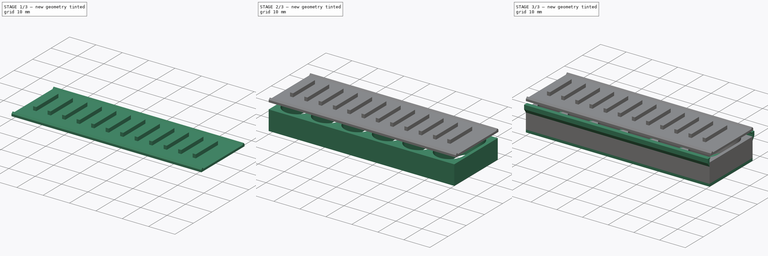
[diagram: build sequence overview — one tinted view per stage of 3, left to right]
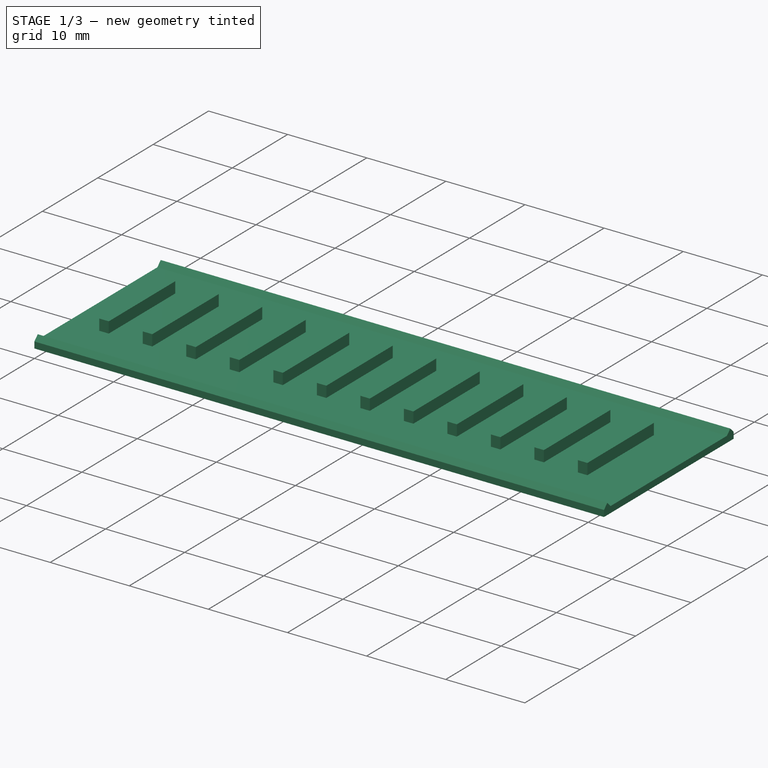
[diagram: stage 1 of 3 — iso view after this stage's code; geometry added in this stage tinted green]
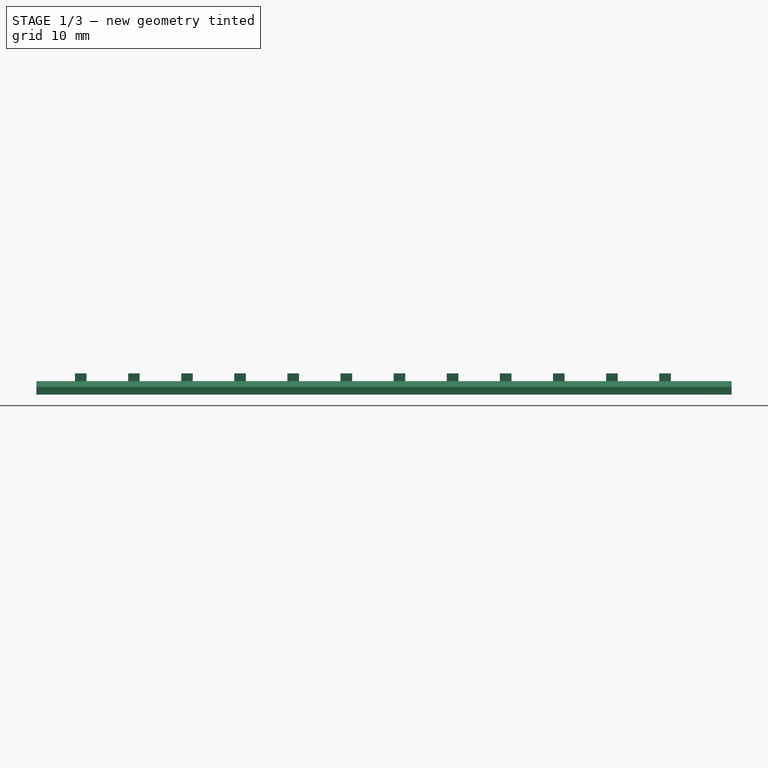
[diagram: stage 1 of 3 — front view after this stage's code; geometry added in this stage tinted green]
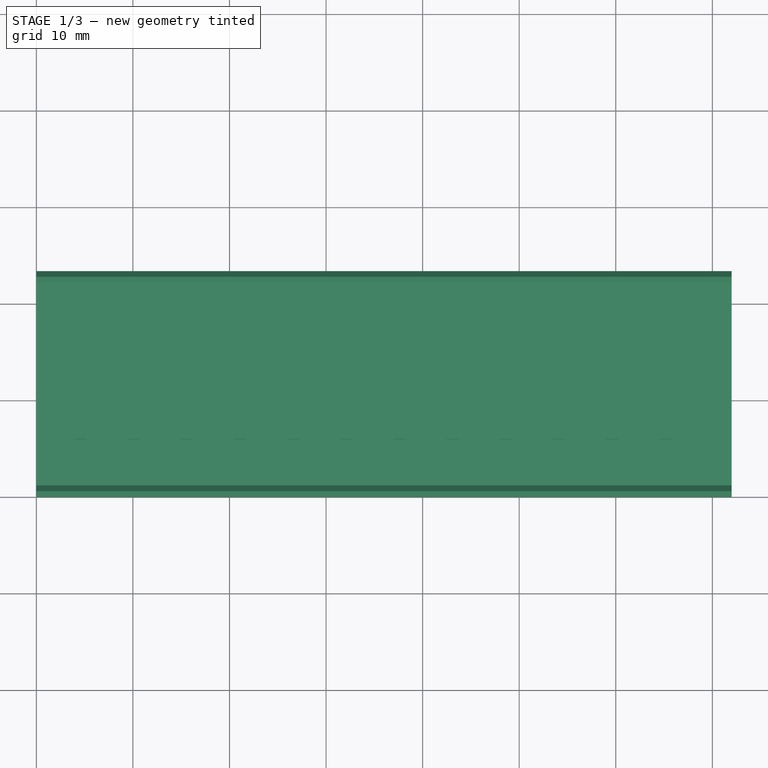
[diagram: stage 1 of 3 — top view after this stage's code; geometry added in this stage tinted green]
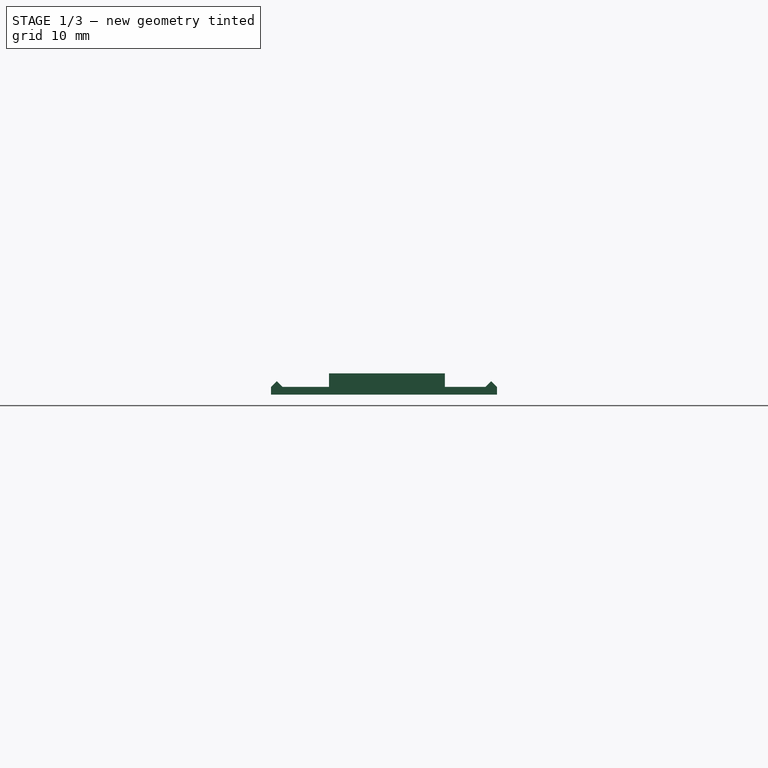
[diagram: stage 1 of 3 — right view after this stage's code; geometry added in this stage tinted green]
FCSTD DOCUMENT  (FreeCAD 0.21Rpre_29277.fc34 (Git))
Label: sotabletta-tarto
License: All rights reserved
LicenseURL: http://en.wikipedia.org/wiki/All_rights_reserved
objects: Sketcher::SketchObject×5, PartDesign::Pad×5, PartDesign::Body×2
note: 17 computed .brp shape members not serialized (recipe doc carries the construction recipe); baked Part::Feature solids carry a one-line shape summary decoded from their .brp

FEATURE [PartDesign::Body] Body  label="tarto"
  Group = -> [Sketch,Pad,Sketch001,Pad001,Sketch002,Pad002]
  Origin = -> Origin
  Tip = -> Pad002
FEATURE [Sketcher::SketchObject] Sketch003
  FullyConstrained = true
  MapMode = 5
  Placement = pos=(0,0,0) rot=(0.57735,0.57735,0.57735;2.0944rad)
  Support = -> [YZ_Plane001]
  sketch-geometry (8):
    g0: LineSegment StartX=0 StartY=10 StartZ=0 EndX=23.4 EndY=10 EndZ=0
    g1: LineSegment StartX=23.4 StartY=10 StartZ=0 EndX=23.4 EndY=10.8 EndZ=0
    g2: LineSegment StartX=23.4 StartY=10.8 StartZ=0 EndX=22.8 EndY=11.4 EndZ=0
    g3: LineSegment StartX=22.8 StartY=11.4 StartZ=0 EndX=22.2 EndY=10.8 EndZ=0
    g4: LineSegment StartX=22.2 StartY=10.8 StartZ=0 EndX=1.2 EndY=10.8 EndZ=0
    g5: LineSegment StartX=1.2 StartY=10.8 StartZ=0 EndX=0.6 EndY=11.4 EndZ=0
    g6: LineSegment StartX=0.6 StartY=11.4 StartZ=0 EndX=0 EndY=10.8 EndZ=0
    g7: LineSegment StartX=0 StartY=10.8 StartZ=0 EndX=0 EndY=10 EndZ=0
  constraints (24):
    c: PointOnObject(g0,g-2)
    c: Horizontal(g0)
    c: Coincident(g0,g1)
    c: Vertical(g1)
    c: Coincident(g1,g2)
    c: Coincident(g2,g3)
    c: Coincident(g3,g4)
    c: Horizontal(g4)
    c: Coincident(g4,g5)
    c: Coincident(g5,g6)
    c: PointOnObject(g6,g-2)
    c: Coincident(g6,g7)
    c: Coincident(g7,g0)
    c: DistanceY(g0) = 10
    c: DistanceY(g2,g2) = 0.6
    c: DistanceX(g0,g0) = 23.4
    c: DistanceY(g7,g7) = 0.8
    c: DistanceY(g6,g6) = 0.6
    c: DistanceY(g5,g5) = 0.6
    c: DistanceY(g3,g3) = 0.6
    c: DistanceX(g2,g2) = 0.6
    c: DistanceX(g3,g3) = 0.6
    c: DistanceX(g5,g5) = 0.6
    c: DistanceX(g6,g6) = 0.6
FEATURE [PartDesign::Pad] Pad003  label="fedlap"
  Direction = (1,-2e-16,3e-16)
  Length = 72
  Length2 = 10
  Placement = pos=(0,0,0) rot=(0.57735,0.57735,0.57735;2.0944rad)
  Profile = -> Sketch003
  ReferenceAxis = -> Sketch003 [N_Axis]
  Type = 0
FEATURE [Sketcher::SketchObject] Sketch004
  AttachmentOffset = pos=(0,0,10.8) rot=(0,0,1;0rad)
  FullyConstrained = true
  MapMode = 5
  Placement = pos=(0,0,10.8) rot=(0,0,1;0rad)
  Support = -> [XY_Plane001]
  sketch-geometry (59):
    g0: LineSegment StartX=4 StartY=18 StartZ=0 EndX=5.2 EndY=18 EndZ=0
    g1: LineSegment StartX=5.2 StartY=18 StartZ=0 EndX=5.2 EndY=6 EndZ=0
    g2: LineSegment StartX=5.2 StartY=6 StartZ=0 EndX=4 EndY=6 EndZ=0
    g3: LineSegment StartX=4 StartY=6 StartZ=0 EndX=4 EndY=18 EndZ=0
    g4: LineSegment StartX=9.5 StartY=18 StartZ=0 EndX=10.7 EndY=18 EndZ=0
    g5: LineSegment StartX=10.7 StartY=18 StartZ=0 EndX=10.7 EndY=6 EndZ=0
    g6: LineSegment StartX=10.7 StartY=6 StartZ=0 EndX=9.5 EndY=6 EndZ=0
    g7: LineSegment StartX=9.5 StartY=6 StartZ=0 EndX=9.5 EndY=18 EndZ=0
    g8: LineSegment StartX=4 StartY=18 StartZ=0 EndX=9.5 EndY=18 EndZ=0
    g9: LineSegment StartX=15 StartY=18 StartZ=0 EndX=16.2 EndY=18 EndZ=0
    g10: LineSegment StartX=16.2 StartY=18 StartZ=0 EndX=16.2 EndY=6 EndZ=0
    g11: LineSegment StartX=16.2 StartY=6 StartZ=0 EndX=15 EndY=6 EndZ=0
    g12: LineSegment StartX=15 StartY=6 StartZ=0 EndX=15 EndY=18 EndZ=0
    g13: LineSegment StartX=9.5 StartY=18 StartZ=0 EndX=15 EndY=18 EndZ=0
    g14: LineSegment StartX=20.5 StartY=18 StartZ=0 EndX=21.7 EndY=18 EndZ=0
    g15: LineSegment StartX=21.7 StartY=18 StartZ=0 EndX=21.7 EndY=6 EndZ=0
    g16: LineSegment StartX=21.7 StartY=6 StartZ=0 EndX=20.5 EndY=6 EndZ=0
    g17: LineSegment StartX=20.5 StartY=6 StartZ=0 EndX=20.5 EndY=18 EndZ=0
    g18: LineSegment StartX=15 StartY=18 StartZ=0 EndX=20.5 EndY=18 EndZ=0
    g19: LineSegment StartX=26 StartY=18 StartZ=0 EndX=27.2 EndY=18 EndZ=0
    g20: LineSegment StartX=27.2 StartY=18 StartZ=0 EndX=27.2 EndY=6 EndZ=0
    g21: LineSegment StartX=27.2 StartY=6 StartZ=0 EndX=26 EndY=6 EndZ=0
    g22: LineSegment StartX=26 StartY=6 StartZ=0 EndX=26 EndY=18 EndZ=0
    g23: LineSegment StartX=20.5 StartY=18 StartZ=0 EndX=26 EndY=18 EndZ=0
    g24: LineSegment StartX=31.5 StartY=18 StartZ=0 EndX=32.7 EndY=18 EndZ=0
    g25: LineSegment StartX=32.7 StartY=18 StartZ=0 EndX=32.7 EndY=6 EndZ=0
    g26: LineSegment StartX=32.7 StartY=6 StartZ=0 EndX=31.5 EndY=6 EndZ=0
    g27: LineSegment StartX=31.5 StartY=6 StartZ=0 EndX=31.5 EndY=18 EndZ=0
    g28: LineSegment StartX=26 StartY=18 StartZ=0 EndX=31.5 EndY=18 EndZ=0
    g29: LineSegment StartX=37 StartY=18 StartZ=0 EndX=38.2 EndY=18 EndZ=0
    g30: LineSegment StartX=38.2 StartY=18 StartZ=0 EndX=38.2 EndY=6 EndZ=0
    g31: LineSegment StartX=38.2 StartY=6 StartZ=0 EndX=37 EndY=6 EndZ=0
    g32: LineSegment StartX=37 StartY=6 StartZ=0 EndX=37 EndY=18 EndZ=0
    g33: LineSegment StartX=31.5 StartY=18 StartZ=0 EndX=37 EndY=18 EndZ=0
    g34: LineSegment StartX=42.5 StartY=18 StartZ=0 EndX=43.7 EndY=18 EndZ=0
    g35: LineSegment StartX=43.7 StartY=18 StartZ=0 EndX=43.7 EndY=6 EndZ=0
    g36: LineSegment StartX=43.7 StartY=6 StartZ=0 EndX=42.5 EndY=6 EndZ=0
    g37: LineSegment StartX=42.5 StartY=6 StartZ=0 EndX=42.5 EndY=18 EndZ=0
    g38: LineSegment StartX=37 StartY=18 StartZ=0 EndX=42.5 EndY=18 EndZ=0
    g39: LineSegment StartX=48 StartY=18 StartZ=0 EndX=49.2 EndY=18 EndZ=0
    g40: LineSegment StartX=49.2 StartY=18 StartZ=0 EndX=49.2 EndY=6 EndZ=0
    g41: LineSegment StartX=49.2 StartY=6 StartZ=0 EndX=48 EndY=6 EndZ=0
    g42: LineSegment StartX=48 StartY=6 StartZ=0 EndX=48 EndY=18 EndZ=0
    g43: LineSegment StartX=42.5 StartY=18 StartZ=0 EndX=48 EndY=18 EndZ=0
    g44: LineSegment StartX=53.5 StartY=18 StartZ=0 EndX=54.7 EndY=18 EndZ=0
    g45: LineSegment StartX=54.7 StartY=18 StartZ=0 EndX=54.7 EndY=6 EndZ=0
    g46: LineSegment StartX=54.7 StartY=6 StartZ=0 EndX=53.5 EndY=6 EndZ=0
    g47: LineSegment StartX=53.5 StartY=6 StartZ=0 EndX=53.5 EndY=18 EndZ=0
    g48: LineSegment StartX=48 StartY=18 StartZ=0 EndX=53.5 EndY=18 EndZ=0
    g49: LineSegment StartX=59 StartY=18 StartZ=0 EndX=60.2 EndY=18 EndZ=0
    g50: LineSegment StartX=60.2 StartY=18 StartZ=0 EndX=60.2 EndY=6 EndZ=0
    g51: LineSegment StartX=60.2 StartY=6 StartZ=0 EndX=59 EndY=6 EndZ=0
    g52: LineSegment StartX=59 StartY=6 StartZ=0 EndX=59 EndY=18 EndZ=0
    g53: LineSegment StartX=53.5 StartY=18 StartZ=0 EndX=59 EndY=18 EndZ=0
    g54: LineSegment StartX=64.5 StartY=18 StartZ=0 EndX=65.7 EndY=18 EndZ=0
    g55: LineSegment StartX=65.7 StartY=18 StartZ=0 EndX=65.7 EndY=6 EndZ=0
    g56: LineSegment StartX=65.7 StartY=6 StartZ=0 EndX=64.5 EndY=6 EndZ=0
    g57: LineSegment StartX=64.5 StartY=6 StartZ=0 EndX=64.5 EndY=18 EndZ=0
    g58: LineSegment StartX=59 StartY=18 StartZ=0 EndX=64.5 EndY=18 EndZ=0
  constraints (166):
    c: Coincident(g0,g1)
    c: Coincident(g1,g2)
    c: Coincident(g2,g3)
    c: Coincident(g3,g0)
    c: Horizontal(g0)
    c: Horizontal(g2)
    c: Vertical(g1)
    c: Vertical(g3)
    c: DistanceX(g0,g0) = 1.2
    c: DistanceY(g1,g1) = 12
    c: DistanceX(g2) = 4
    c: DistanceY(g2) = 6
    c: Coincident(g4,g5)
    c: Coincident(g5,g6)
    c: Coincident(g6,g7)
    c: Coincident(g7,g4)
    c: Horizontal(g4)
    c: Horizontal(g6)
    c: Vertical(g5)
    c: Vertical(g7)
    c: Equal(g0,g4) = 1.2
    c: Equal(g1,g5) = 12
    c: Coincident(g0,g8)
    c: Coincident(g4,g8)
    c: Distance(g8) = 5.5
    c: Angle(g8) = 0
    c: Coincident(g9,g10)
    c: Coincident(g10,g11)
    c: Coincident(g11,g12)
    c: Coincident(g12,g9)
    c: Horizontal(g9)
    c: Horizontal(g11)
    c: Vertical(g10)
    c: Vertical(g12)
    c: Equal(g0,g9) = 1.2
    c: Equal(g1,g10) = 12
    c: Coincident(g4,g13)
    c: Coincident(g9,g13)
    c: Equal(g8,g13)
    c: Parallel(g13,g8)
    c: Coincident(g14,g15)
    c: Coincident(g15,g16)
    c: Coincident(g16,g17)
    c: Coincident(g17,g14)
    c: Horizontal(g14)
    c: Horizontal(g16)
    c: Vertical(g15)
    c: Vertical(g17)
    c: Equal(g0,g14) = 1.2
    c: Equal(g1,g15) = 12
    c: Coincident(g9,g18)
    c: Coincident(g14,g18)
    c: Equal(g8,g18)
    c: Parallel(g18,g8)
    c: Coincident(g19,g20)
    c: Coincident(g20,g21)
    c: Coincident(g21,g22)
    c: Coincident(g22,g19)
    c: Horizontal(g19)
    c: Horizontal(g21)
    c: Vertical(g20)
    c: Vertical(g22)
    c: Equal(g0,g19) = 1.2
    c: Equal(g1,g20) = 12
    c: Coincident(g14,g23)
    c: Coincident(g19,g23)
    c: Equal(g8,g23)
    c: Parallel(g23,g8)
    c: Coincident(g24,g25)
    c: Coincident(g25,g26)
    c: Coincident(g26,g27)
    c: Coincident(g27,g24)
    c: Horizontal(g24)
    c: Horizontal(g26)
    c: Vertical(g25)
    c: Vertical(g27)
    c: Equal(g0,g24) = 1.2
    c: Equal(g1,g25) = 12
    c: Coincident(g19,g28)
    c: Coincident(g24,g28)
    c: Equal(g8,g28)
    c: Parallel(g28,g8)
    c: Coincident(g29,g30)
    c: Coincident(g30,g31)
    c: Coincident(g31,g32)
    c: Coincident(g32,g29)
    c: Horizontal(g29)
    c: Horizontal(g31)
    c: Vertical(g30)
    c: Vertical(g32)
    c: Equal(g0,g29) = 1.2
    c: Equal(g1,g30) = 12
    c: Coincident(g24,g33)
    c: Coincident(g29,g33)
    c: Equal(g8,g33)
    c: Parallel(g33,g8)
    c: Coincident(g34,g35)
    c: Coincident(g35,g36)
    c: Coincident(g36,g37)
    c: Coincident(g37,g34)
    c: Horizontal(g34)
    c: Horizontal(g36)
    c: Vertical(g35)
    c: Vertical(g37)
    c: Equal(g0,g34) = 1.2
    c: Equal(g1,g35) = 12
    c: Coincident(g29,g38)
    c: Coincident(g34,g38)
    c: Equal(g8,g38)
    c: Parallel(g38,g8)
    c: Coincident(g39,g40)
    c: Coincident(g40,g41)
    c: Coincident(g41,g42)
    c: Coincident(g42,g39)
    c: Horizontal(g39)
    c: Horizontal(g41)
    c: Vertical(g40)
    c: Vertical(g42)
    c: Equal(g0,g39) = 1.2
    c: Equal(g1,g40) = 12
    c: Coincident(g34,g43)
    c: Coincident(g39,g43)
    c: Equal(g8,g43)
    c: Parallel(g43,g8)
    c: Coincident(g44,g45)
    c: Coincident(g45,g46)
    c: Coincident(g46,g47)
    c: Coincident(g47,g44)
    c: Horizontal(g44)
    c: Horizontal(g46)
    c: Vertical(g45)
    c: Vertical(g47)
    c: Equal(g0,g44) = 1.2
    c: Equal(g1,g45) = 12
    c: Coincident(g39,g48)
    c: Coincident(g44,g48)
    c: Equal(g8,g48)
    c: Parallel(g48,g8)
    c: Coincident(g49,g50)
    c: Coincident(g50,g51)
    c: Coincident(g51,g52)
    c: Coincident(g52,g49)
    c: Horizontal(g49)
    c: Horizontal(g51)
    c: Vertical(g50)
    c: Vertical(g52)
    c: Equal(g0,g49) = 1.2
    c: Equal(g1,g50) = 12
    c: Coincident(g44,g53)
    c: Coincident(g49,g53)
    c: Equal(g8,g53)
    c: Parallel(g53,g8)
    c: Coincident(g54,g55)
    c: Coincident(g55,g56)
    c: Coincident(g56,g57)
    c: Coincident(g57,g54)
    c: Horizontal(g54)
    c: Horizontal(g56)
    c: Vertical(g55)
    c: Vertical(g57)
    c: Equal(g0,g54) = 1.2
    c: Equal(g1,g55) = 12
    c: Coincident(g49,g58)
    c: Coincident(g54,g58)
    c: Equal(g8,g58)
    c: Parallel(g58,g8)
FEATURE [PartDesign::Pad] Pad004  label="bordazat"
  BaseFeature = -> Pad003
  Direction = (0,0,1)
  Length = 1.4
  Length2 = 10
  Placement = pos=(0,0,0) rot=(0.57735,0.57735,0.57735;2.0944rad)
  Profile = -> Sketch004
  ReferenceAxis = -> Sketch004 [N_Axis]
  Type = 0
FEATURE [PartDesign::Body] Body001  label="fedel"
  Group = -> [Sketch003,Pad003,Sketch004,Pad004]
  Origin = -> Origin001
  Tip = -> Pad004
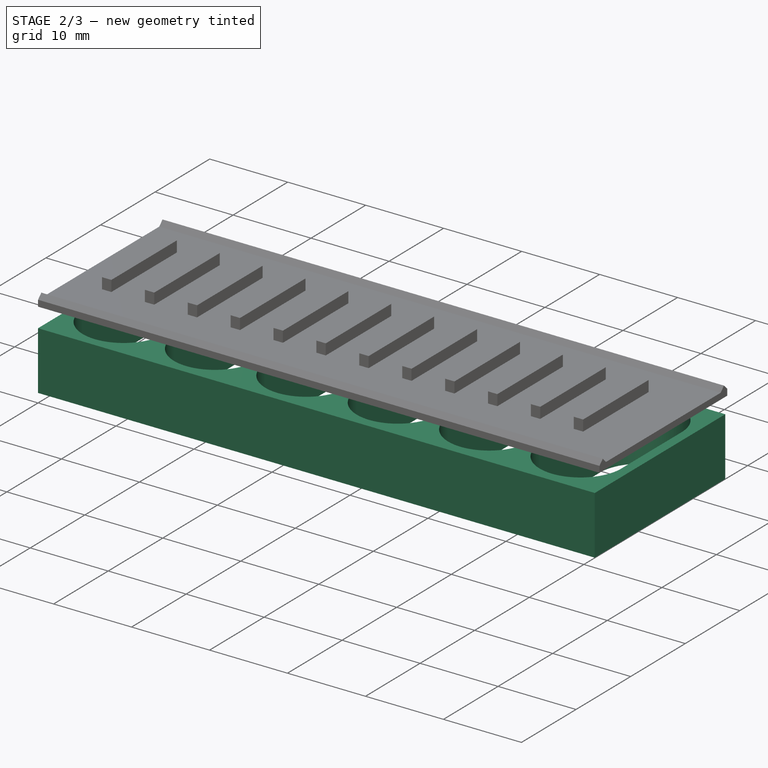
[diagram: stage 2 of 3 — iso view after this stage's code; geometry added in this stage tinted green]
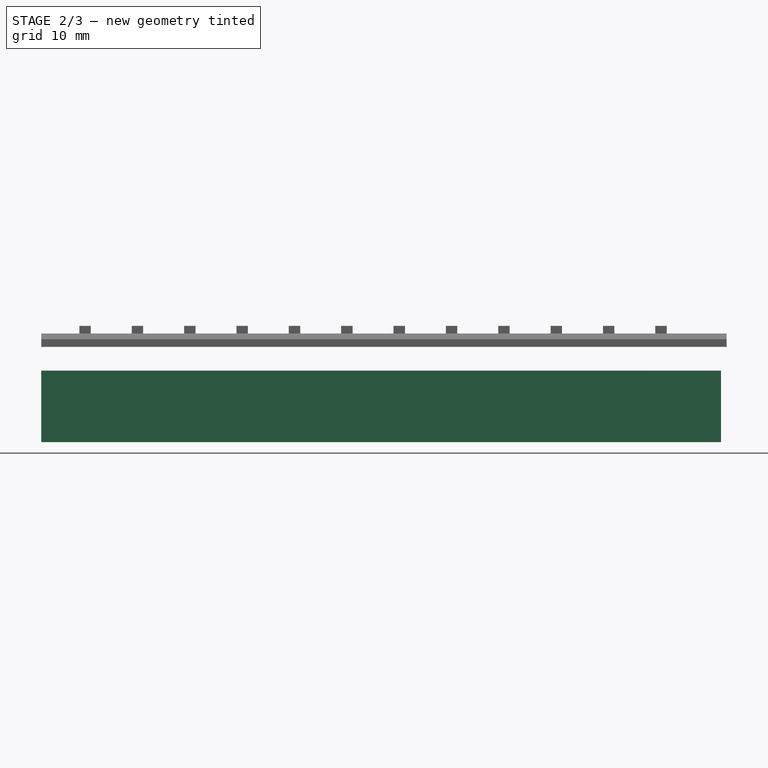
[diagram: stage 2 of 3 — front view after this stage's code; geometry added in this stage tinted green]
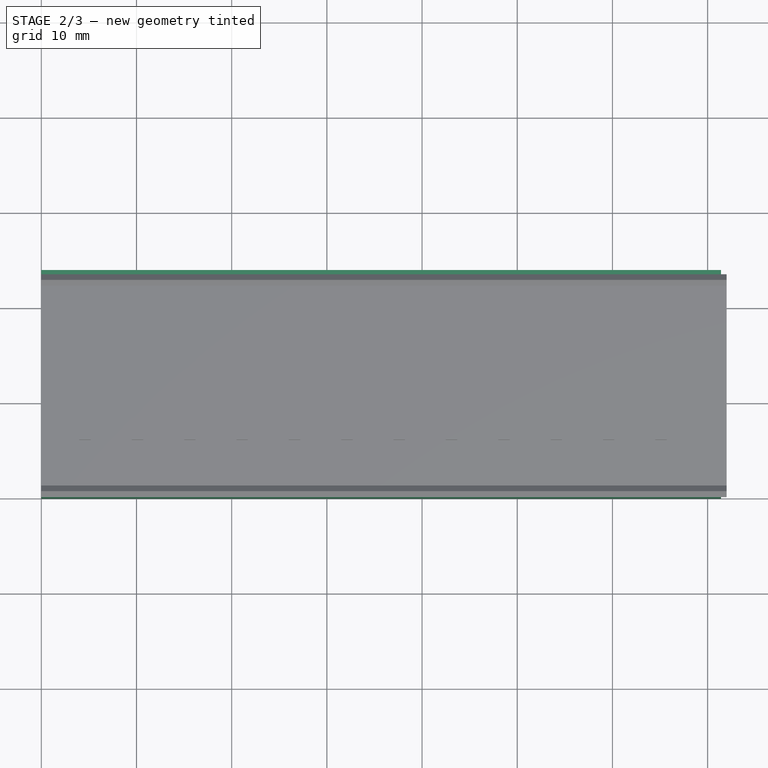
[diagram: stage 2 of 3 — top view after this stage's code; geometry added in this stage tinted green]
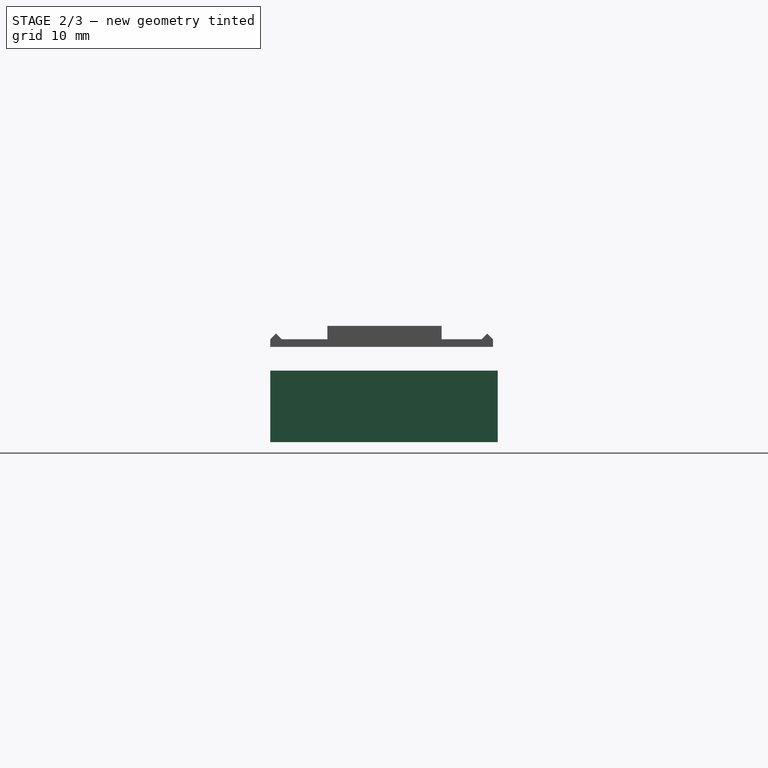
[diagram: stage 2 of 3 — right view after this stage's code; geometry added in this stage tinted green]
FEATURE [Sketcher::SketchObject] Sketch
  FullyConstrained = true
  MapMode = 5
  Support = -> [XY_Plane]
  sketch-geometry (33):
    g0: ArcOfCircle CenterX=6.45 CenterY=17.45 CenterZ=0 NormalX=0 NormalY=0 NormalZ=1 AngleXU=0 Radius=5.25 StartAngle=2.5853e-12 EndAngle=3.14159
    g1: ArcOfCircle CenterX=6.45 CenterY=6.45 CenterZ=0 NormalX=0 NormalY=0 NormalZ=1 AngleXU=0 Radius=5.25 StartAngle=3.14159 EndAngle=6.28319
    g2: LineSegment StartX=1.2 StartY=17.45 StartZ=0 EndX=1.2 EndY=6.45 EndZ=0
    g3: LineSegment StartX=11.7 StartY=6.45 StartZ=0 EndX=11.7 EndY=17.45 EndZ=0
    g4: ArcOfCircle CenterX=18.15 CenterY=17.4793 CenterZ=0 NormalX=0 NormalY=0 NormalZ=1 AngleXU=0 Radius=5.25 StartAngle=0 EndAngle=3.14159
    g5: ArcOfCircle CenterX=18.15 CenterY=6.4793 CenterZ=0 NormalX=0 NormalY=0 NormalZ=1 AngleXU=0 Radius=5.25 StartAngle=3.14159 EndAngle=6.28319
    g6: LineSegment StartX=12.9 StartY=17.4793 StartZ=0 EndX=12.9 EndY=6.4793 EndZ=0
    g7: LineSegment StartX=23.4 StartY=6.4793 StartZ=0 EndX=23.4 EndY=17.4793 EndZ=0
    g8: LineSegment StartX=11.7 StartY=17.45 StartZ=0 EndX=23.4 EndY=17.4793 EndZ=0
    g9: ArcOfCircle CenterX=29.8499 CenterY=17.5086 CenterZ=0 NormalX=0 NormalY=0 NormalZ=1 AngleXU=0 Radius=5.25 StartAngle=3e-16 EndAngle=3.14159
    g10: ArcOfCircle CenterX=29.8499 CenterY=6.50859 CenterZ=0 NormalX=0 NormalY=0 NormalZ=1 AngleXU=0 Radius=5.25 StartAngle=3.14159 EndAngle=6.28319
    g11: LineSegment StartX=24.5999 StartY=17.5086 StartZ=0 EndX=24.5999 EndY=6.50859 EndZ=0
    g12: LineSegment StartX=35.0999 StartY=6.50859 StartZ=0 EndX=35.0999 EndY=17.5086 EndZ=0
    g13: LineSegment StartX=23.4 StartY=17.4793 StartZ=0 EndX=35.0999 EndY=17.5086 EndZ=0
    g14: ArcOfCircle CenterX=41.5499 CenterY=17.5379 CenterZ=0 NormalX=0 NormalY=0 NormalZ=1 AngleXU=0 Radius=5.25 StartAngle=2e-16 EndAngle=3.14159
    g15: ArcOfCircle CenterX=41.5499 CenterY=6.53789 CenterZ=0 NormalX=0 NormalY=0 NormalZ=1 AngleXU=0 Radius=5.25 StartAngle=3.14159 EndAngle=6.28319
    g16: LineSegment StartX=36.2999 StartY=17.5379 StartZ=0 EndX=36.2999 EndY=6.53789 EndZ=0
    g17: LineSegment StartX=46.7999 StartY=6.53789 StartZ=0 EndX=46.7999 EndY=17.5379 EndZ=0
    g18: LineSegment StartX=35.0999 StartY=17.5086 StartZ=0 EndX=46.7999 EndY=17.5379 EndZ=0
    g19: ArcOfCircle CenterX=53.2499 CenterY=17.5672 CenterZ=0 NormalX=0 NormalY=0 NormalZ=1 AngleXU=0 Radius=5.25 StartAngle=3e-16 EndAngle=3.14159
    g20: ArcOfCircle CenterX=53.2499 CenterY=6.56718 CenterZ=0 NormalX=0 NormalY=0 NormalZ=1 AngleXU=0 Radius=5.25 StartAngle=3.14159 EndAngle=6.28319
    g21: LineSegment StartX=47.9999 StartY=17.5672 StartZ=0 EndX=47.9999 EndY=6.56718 EndZ=0
    g22: LineSegment StartX=58.4999 StartY=6.56718 StartZ=0 EndX=58.4999 EndY=17.5672 EndZ=0
    g23: LineSegment StartX=46.7999 StartY=17.5379 StartZ=0 EndX=58.4999 EndY=17.5672 EndZ=0
    g24: ArcOfCircle CenterX=64.9498 CenterY=17.5965 CenterZ=0 NormalX=0 NormalY=0 NormalZ=1 AngleXU=0 Radius=5.25 StartAngle=-1.8e-15 EndAngle=3.14159
    g25: ArcOfCircle CenterX=64.9498 CenterY=6.59648 CenterZ=0 NormalX=0 NormalY=0 NormalZ=1 AngleXU=0 Radius=5.25 StartAngle=3.14159 EndAngle=6.28319
    g26: LineSegment StartX=59.6998 StartY=17.5965 StartZ=0 EndX=59.6998 EndY=6.59648 EndZ=0
    g27: LineSegment StartX=70.1998 StartY=6.59648 StartZ=0 EndX=70.1998 EndY=17.5965 EndZ=0
    g28: LineSegment StartX=58.4999 StartY=17.5672 StartZ=0 EndX=70.1998 EndY=17.5965 EndZ=0
    g29: LineSegment StartX=0 StartY=23.9 StartZ=0 EndX=71.4 EndY=23.9 EndZ=0
    g30: LineSegment StartX=71.4 StartY=23.9 StartZ=0 EndX=71.4 EndY=0 EndZ=0
    g31: LineSegment StartX=71.4 StartY=0 StartZ=0 EndX=0 EndY=0 EndZ=0
    g32: LineSegment StartX=0 StartY=0 StartZ=0 EndX=0 EndY=23.9 EndZ=0
  constraints (82):
    c: Tangent(g0,g2) = -1.5708
    c: Tangent(g2,g1) = -1.5708
    c: Tangent(g1,g3) = -1.5708
    c: Tangent(g3,g0) = -1.5708
    c: Equal(g0,g1)
    c: Vertical(g2)
    c: Radius(g1) = 5.25
    c: DistanceY(g3,g3) = 11
    c: DistanceX(g1) = 6.45
    c: DistanceY(g1) = 6.45
    c: Tangent(g4,g6) = -1.5708
    c: Tangent(g6,g5) = -1.5708
    c: Tangent(g5,g7) = -1.5708
    c: Tangent(g7,g4) = -1.5708
    c: Equal(g4,g5)
    c: Vertical(g6)
    c: Equal(g1,g5) = 5.25
    c: Equal(g3,g7) = 11
    c: Coincident(g0,g8)
    c: Coincident(g4,g8)
    c: Distance(g8) = 11.7
    c: Angle(g8) = 0.00250391
    c: Tangent(g9,g11) = -1.5708
    c: Tangent(g11,g10) = -1.5708
    c: Tangent(g10,g12) = -1.5708
    c: Tangent(g12,g9) = -1.5708
    c: Equal(g9,g10)
    c: Vertical(g11)
    c: Equal(g1,g10) = 5.25
    c: Equal(g3,g12) = 11
    c: Coincident(g4,g13)
    c: Coincident(g9,g13)
    c: Equal(g8,g13)
    c: Parallel(g13,g8)
    c: Tangent(g14,g16) = -1.5708
    c: Tangent(g16,g15) = -1.5708
    c: Tangent(g15,g17) = -1.5708
    c: Tangent(g17,g14) = -1.5708
    c: Equal(g14,g15)
    c: Vertical(g16)
    c: Equal(g1,g15) = 5.25
    c: Equal(g3,g17) = 11
    c: Coincident(g9,g18)
    c: Coincident(g14,g18)
    c: Equal(g8,g18)
    c: Parallel(g18,g8)
    c: Tangent(g19,g21) = -1.5708
    c: Tangent(g21,g20) = -1.5708
    c: Tangent(g20,g22) = -1.5708
    c: Tangent(g22,g19) = -1.5708
    c: Equal(g19,g20)
    c: Vertical(g21)
    c: Equal(g1,g20) = 5.25
    c: Equal(g3,g22) = 11
    c: Coincident(g14,g23)
    c: Coincident(g19,g23)
    c: Equal(g8,g23)
    c: Parallel(g23,g8)
    c: Tangent(g24,g26) = -1.5708
    c: Tangent(g26,g25) = -1.5708
    c: Tangent(g25,g27) = -1.5708
    c: Tangent(g27,g24) = -1.5708
    c: Equal(g24,g25)
    c: Vertical(g26)
    c: Equal(g1,g25) = 5.25
    c: Equal(g3,g27) = 11
    c: Coincident(g19,g28)
    c: Coincident(g24,g28)
    c: Equal(g8,g28)
    c: Parallel(g28,g8)
    c: Coincident(g29,g30)
    c: Coincident(g30,g31)
    c: Coincident(g31,g32)
    c: Coincident(g32,g29)
    c: Horizontal(g29)
    c: Horizontal(g31)
    c: Vertical(g30)
    c: Vertical(g32)
    c: PointOnObject(g29,g-2)
    c: PointOnObject(g30,g-1)
    c: DistanceX(g29,g29) = 71.4
    c: DistanceY(g30,g30) = 23.9
FEATURE [PartDesign::Pad] Pad  label="test"
  Direction = (0,0,1)
  Length = 7.5
  Length2 = 10
  Profile = -> Sketch
  ReferenceAxis = -> Sketch [N_Axis]
  Type = 0
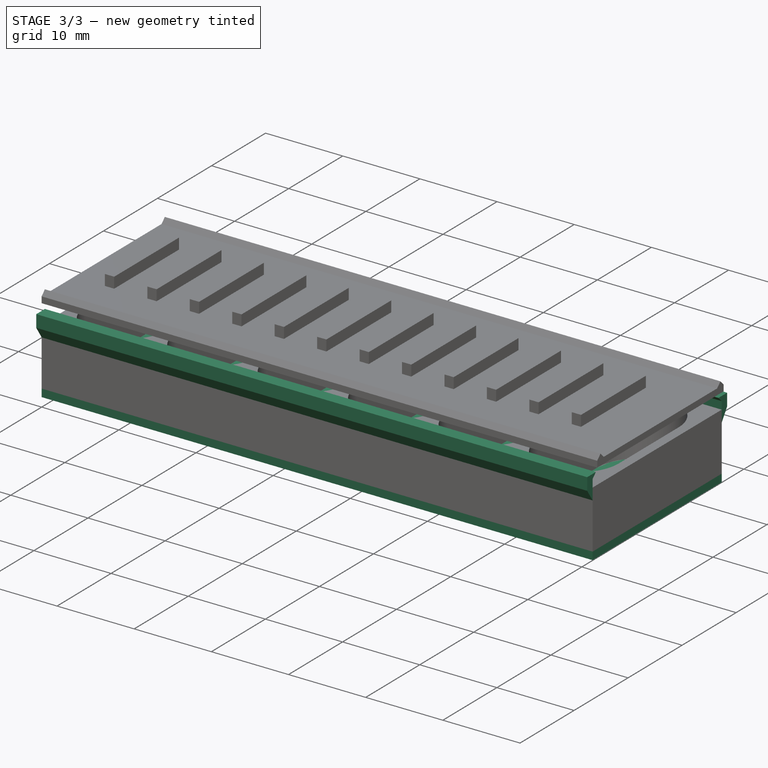
[diagram: stage 3 of 3 — iso view after this stage's code; geometry added in this stage tinted green]
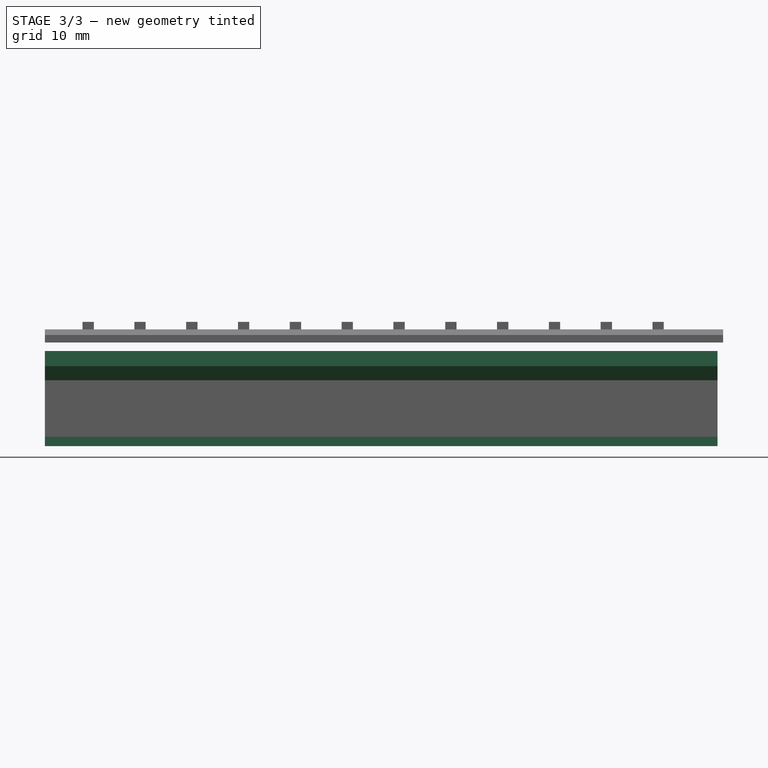
[diagram: stage 3 of 3 — front view after this stage's code; geometry added in this stage tinted green]
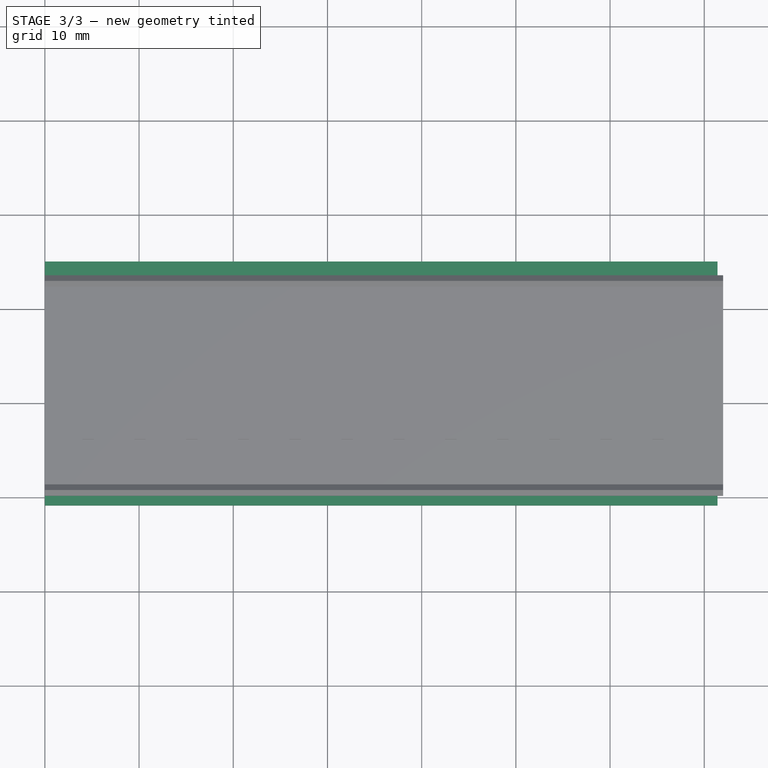
[diagram: stage 3 of 3 — top view after this stage's code; geometry added in this stage tinted green]
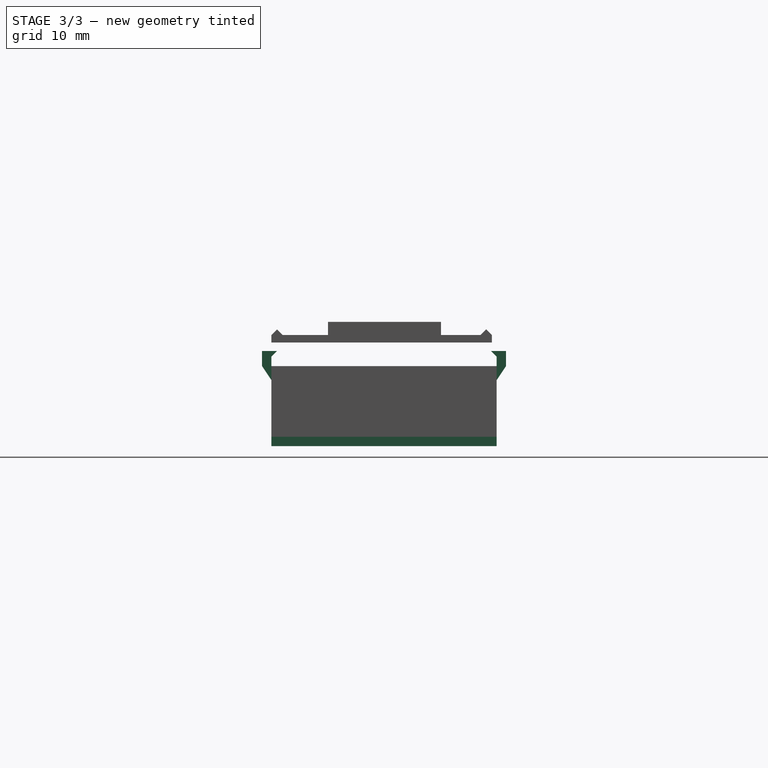
[diagram: stage 3 of 3 — right view after this stage's code; geometry added in this stage tinted green]
FEATURE [Sketcher::SketchObject] Sketch001
  FullyConstrained = true
  MapMode = 5
  Support = -> [XY_Plane]
  sketch-geometry (4):
    g0: LineSegment StartX=0 StartY=23.9 StartZ=0 EndX=71.4 EndY=23.9 EndZ=0
    g1: LineSegment StartX=71.4 StartY=23.9 StartZ=0 EndX=71.4 EndY=0 EndZ=0
    g2: LineSegment StartX=71.4 StartY=0 StartZ=0 EndX=0 EndY=0 EndZ=0
    g3: LineSegment StartX=0 StartY=0 StartZ=0 EndX=0 EndY=23.9 EndZ=0
  constraints (12):
    c: Coincident(g0,g1)
    c: Coincident(g1,g2)
    c: Coincident(g2,g3)
    c: Coincident(g3,g0)
    c: Horizontal(g0)
    c: Horizontal(g2)
    c: Vertical(g1)
    c: Vertical(g3)
    c: PointOnObject(g0,g-2)
    c: PointOnObject(g1,g-1)
    c: DistanceX(g0,g0) = 71.4
    c: DistanceY(g1,g1) = 23.9
FEATURE [PartDesign::Pad] Pad001  label="alap"
  BaseFeature = -> Pad
  Direction = (0,0,1)
  Length = 1
  Length2 = 10
  Profile = -> Sketch001
  ReferenceAxis = -> Sketch001 [N_Axis]
  Reversed = true
  Type = 0
FEATURE [Sketcher::SketchObject] Sketch002
  FullyConstrained = true
  MapMode = 5
  Placement = pos=(0,0,0) rot=(0.57735,0.57735,0.57735;2.0944rad)
  Support = -> [YZ_Plane]
  sketch-geometry (10):
    g0: LineSegment StartX=0 StartY=6 StartZ=0 EndX=-1 EndY=7.5 EndZ=0
    g1: LineSegment StartX=-1 StartY=7.5 StartZ=0 EndX=-1 EndY=9.1 EndZ=0
    g2: LineSegment StartX=-1 StartY=9.1 StartZ=0 EndX=0.6 EndY=9.1 EndZ=0
    g3: LineSegment StartX=23.9 StartY=6 StartZ=0 EndX=24.9 EndY=7.5 EndZ=0
    g4: LineSegment StartX=24.9 StartY=7.5 StartZ=0 EndX=24.9 EndY=9.1 EndZ=0
    g5: LineSegment StartX=24.9 StartY=9.1 StartZ=0 EndX=23.3 EndY=9.1 EndZ=0
    g6: LineSegment StartX=0 StartY=8.5 StartZ=0 EndX=0 EndY=6 EndZ=0
    g7: LineSegment StartX=23.9 StartY=8.5 StartZ=0 EndX=23.9 EndY=6 EndZ=0
    g8: LineSegment StartX=0 StartY=8.5 StartZ=0 EndX=0.6 EndY=9.1 EndZ=0
    g9: LineSegment StartX=23.9 StartY=8.5 StartZ=0 EndX=23.3 EndY=9.1 EndZ=0
  constraints (32):
    c: PointOnObject(g0,g-2)
    c: Coincident(g0,g1)
    c: Vertical(g1)
    c: Coincident(g1,g2)
    c: Horizontal(g2)
    c: PointOnObject(g6,g-2)
    c: Coincident(g3,g4)
    c: Vertical(g4)
    c: Coincident(g4,g5)
    c: Horizontal(g5)
    c: DistanceY(g0) = 6
    c: DistanceX(g3) = 23.9
    c: DistanceY(g3) = 6
    c: DistanceX(g0) = -1
    c: DistanceY(g0) = 7.5
    c: DistanceY(g1,g1) = 1.6
    c: Coincident(g6,g0)
    c: DistanceX(g3) = 24.9
    c: DistanceY(g3) = 7.5
    c: DistanceY(g4,g4) = 1.6
    c: Coincident(g7,g3)
    c: Vertical(g7)
    c: Coincident(g2,g8)
    c: DistanceY(g8,g8) = 0.6
    c: DistanceX(g2,g2) = 1.6
    c: Coincident(g5,g9)
    c: DistanceX(g5,g5) = 1.6
    c: DistanceX(g6,g9) = 23.9
    c: DistanceY(g6,g9) = 0
    c: DistanceY(g7,g9) = 0
    c: DistanceX(g8,g9) = 23.9
    c: DistanceY(g8,g9) = 0
FEATURE [PartDesign::Pad] Pad002  label="fulek"
  BaseFeature = -> Pad001
  Direction = (1,-2e-16,3e-16)
  Length = 71.4
  Length2 = 10
  Profile = -> Sketch002
  ReferenceAxis = -> Sketch002 [N_Axis]
  Type = 0
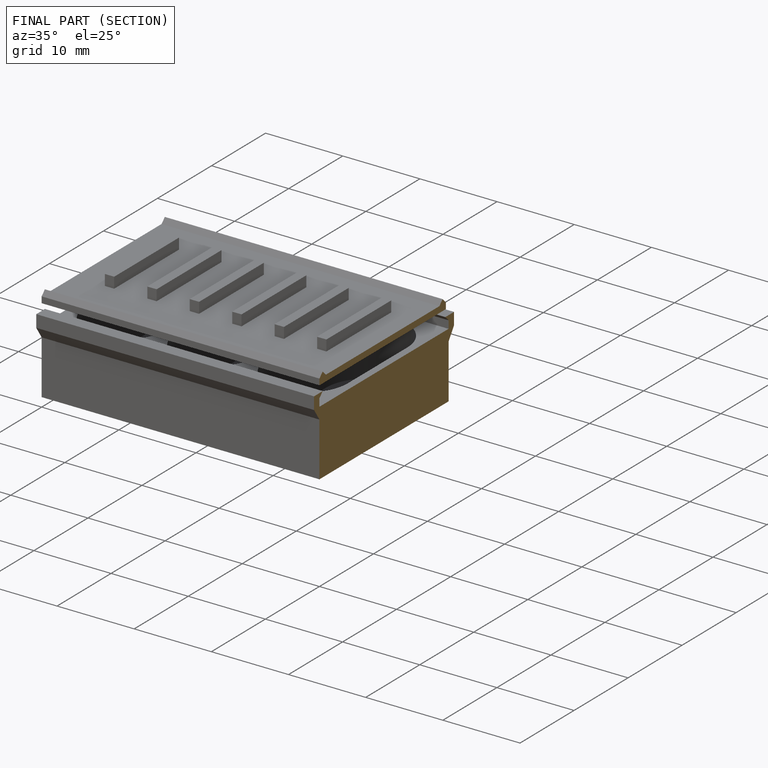
[diagram: finished part — half-section view (interior)]
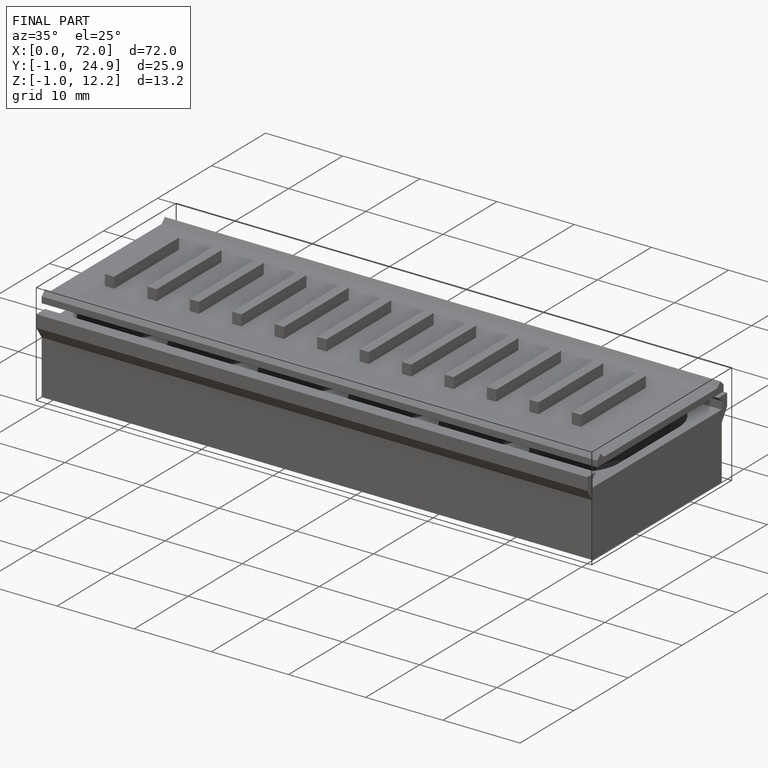
[diagram: finished part — iso view with bounding-box wireframe]
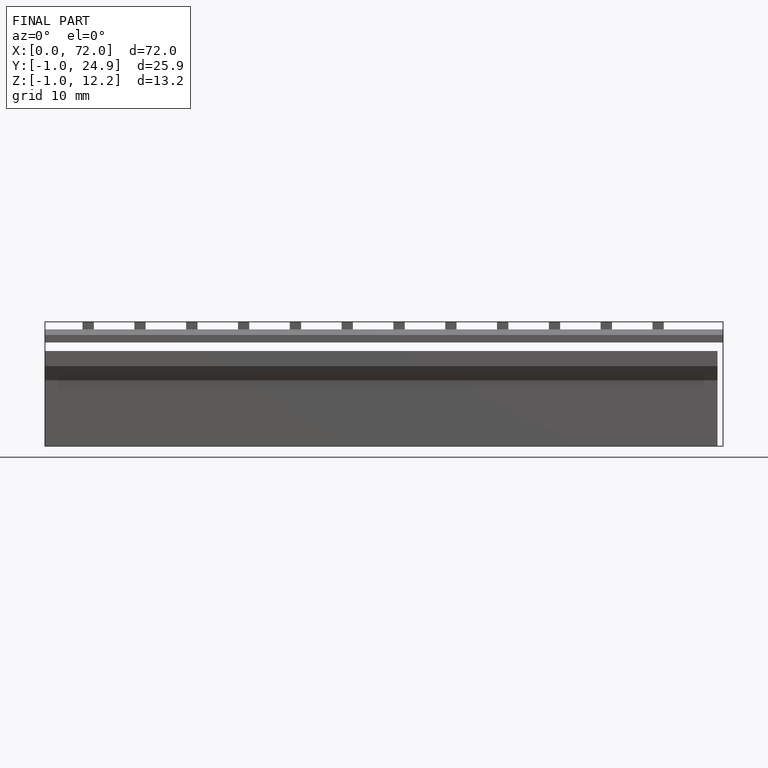
[diagram: finished part — front view with bounding-box wireframe]
